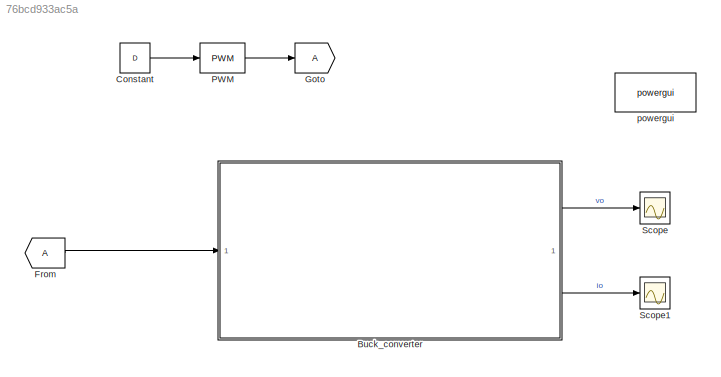
MODEL slx_76bcd933ac5a
KIND model
CONFIG AbsTol = auto
CONFIG EnableMultiTasking = off
CONFIG FixedStep = auto
CONFIG MaxStep = auto
CONFIG MinStep = auto
CONFIG RelTol = 1e-3
CONFIG SampleTimeConstraint = Unconstrained
CONFIG SolverName = VariableStepAuto
CONFIG StartTime = 0.0
CONFIG StopTime = Tend
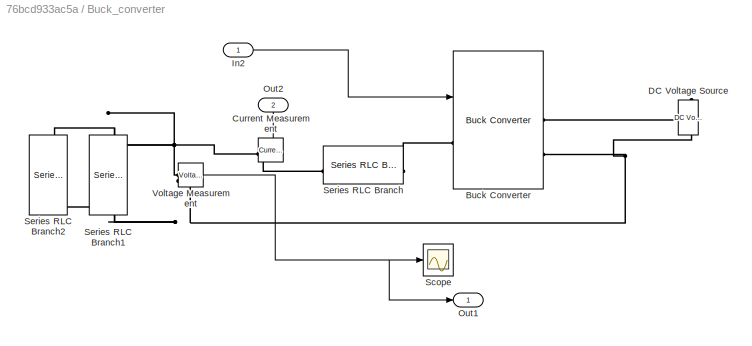
BLOCK [SubSystem] Buck_converter
BLOCK [Reference] Buck_converter/Buck Converter  REF=spsBuckConverterLib/Buck Converter
  LibrarySourceBlock = sps_lib/Power Electronics/Buck Converter
  SourceBlock = spsBuckConverterLib/Buck Converter
  SourceType = Buck Converter
BLOCK [Reference] Buck_converter/Current Measurement  REF=spsCurrentMeasurementLib/Current Measurement
  LibrarySourceBlock = sps_lib/Sensors and Measurements/Current Measurement
  NameLocation = top
  SourceBlock = spsCurrentMeasurementLib/Current Measurement
  SourceType = Current Measurement
  UserDataPersistent = on
BLOCK [Reference] Buck_converter/DC Voltage Source  REF=spsDCVoltageSourceLib/DC Voltage Source
  LibrarySourceBlock = sps_lib/Sources/DC Voltage Source
  SourceBlock = spsDCVoltageSourceLib/DC Voltage Source
  SourceType = DC Voltage Source
BLOCK [Inport] Buck_converter/In2
BLOCK [Outport] Buck_converter/Out1
BLOCK [Outport] Buck_converter/Out2
  Port = 2
BLOCK [Scope] Buck_converter/Scope
  Floating = off
  NumInputPorts = 1
  ScopeSpecificationString = Simulink.scopes.TimeScopeBlockCfg('CurrentConfiguration', extmgr.ConfigurationSet(extmgr.Configuration('Core','General UI',true),extmgr.Configuration('Core','Source UI',true),extmgr.Configuration('Sources','WiredSimulink',true),extmgr.Configuration('Visuals','Time Domain',true,'SerializedDisplays',{struct('MinYLimReal','-6.3939','MaxYLimReal','57.54614','YLabelReal','','MinYLimMag','0.00000','MaxY...<+1385ch>
BLOCK [Reference] Buck_converter/Series RLC Branch  REF=spsSeriesRLCBranchLib/Series RLC Branch
  LibrarySourceBlock = sps_lib/Passives/Series RLC Branch
  NameLocation = top
  SourceBlock = spsSeriesRLCBranchLib/Series RLC Branch
  SourceType = Series RLC Branch
BLOCK [Reference] Buck_converter/Series RLC Branch1  REF=spsSeriesRLCBranchLib/Series RLC Branch
  LibrarySourceBlock = sps_lib/Passives/Series RLC Branch
  NameLocation = left
  SourceBlock = spsSeriesRLCBranchLib/Series RLC Branch
  SourceType = Series RLC Branch
BLOCK [Reference] Buck_converter/Series RLC Branch2  REF=spsSeriesRLCBranchLib/Series RLC Branch
  LibrarySourceBlock = sps_lib/Passives/Series RLC Branch
  NameLocation = left
  SourceBlock = spsSeriesRLCBranchLib/Series RLC Branch
  SourceType = Series RLC Branch
BLOCK [Reference] Buck_converter/Voltage Measurement  REF=spsVoltageMeasurementLib/Voltage Measurement
  LibrarySourceBlock = sps_lib/Sensors and Measurements/Voltage Measurement
  SourceBlock = spsVoltageMeasurementLib/Voltage Measurement
  SourceType = Voltage Measurement
  UserDataPersistent = on
BLOCK [Constant] Constant
  Value = D
BLOCK [From] From
BLOCK [Goto] Goto
BLOCK [Reference] PWM  REF=simulink/Discontinuities/PWM
  DisableCoverage = on
  SourceBlock = simulink/Discontinuities/PWM
  SourceType = PWM
BLOCK [Scope] Scope
  Floating = off
  NumInputPorts = 1
  ScopeSpecificationString = Simulink.scopes.TimeScopeBlockCfg('CurrentConfiguration', extmgr.ConfigurationSet(extmgr.Configuration('Core','General UI',true),extmgr.Configuration('Core','Source UI',true),extmgr.Configuration('Sources','WiredSimulink',true,'DataLoggingVariableName','ScopeData1'),extmgr.Configuration('Visuals','Time Domain',true,'SerializedDisplays',{struct('MinYLimReal','-20.54254','MaxYLimReal','184.98282','Y...<+1390ch>
BLOCK [Scope] Scope1
  Floating = off
  NumInputPorts = 1
  ScopeSpecificationString = Simulink.scopes.TimeScopeBlockCfg('CurrentConfiguration', extmgr.ConfigurationSet(extmgr.Configuration('Core','General UI',true),extmgr.Configuration('Core','Source UI',true),extmgr.Configuration('Sources','WiredSimulink',true,'DataLoggingVariableName','ScopeData1'),extmgr.Configuration('Visuals','Time Domain',true,'SerializedDisplays',{struct('MinYLimReal','-0.62221','MaxYLimReal','5.59782','YLab...<+1405ch>
BLOCK [Reference] powergui  REF=spspowerguiLib/powergui
  LibrarySourceBlock = sps_lib/powergui
  Priority = 1
  SourceBlock = spspowerguiLib/powergui
  SourceType = PSB option menu block
LINE Buck_converter/Current Measurement:1 -> Buck_converter/Out2:1
LINE Buck_converter/In2:1 -> Buck_converter/Buck Converter:1
NET Buck_converter/Voltage Measurement:1 -> Buck_converter/Out1:1, Buck_converter/Scope:1
LINE Buck_converter:1 -> Scope:1
LINE Buck_converter:2 -> Scope1:1
LINE Constant:1 -> PWM:1
LINE From:1 -> Buck_converter:1
LINE PWM:1 -> Goto:1
PLINE Buck_converter/Buck Converter:LConn1 -- Buck_converter/Series RLC Branch:LConn1
PLINE Buck_converter/Buck Converter:RConn1 -- Buck_converter/DC Voltage Source:RConn1
PNET net1: Buck_converter/Buck Converter:RConn2 -- Buck_converter/DC Voltage Source:LConn1 -- Buck_converter/Series RLC Branch1:RConn1 -- Buck_converter/Series RLC Branch2:RConn1 -- Buck_converter/Voltage Measurement:LConn2
PLINE Buck_converter/Current Measurement:LConn1 -- Buck_converter/Series RLC Branch:RConn1
PNET net2: Buck_converter/Current Measurement:RConn1 -- Buck_converter/Series RLC Branch1:LConn1 -- Buck_converter/Series RLC Branch2:LConn1 -- Buck_converter/Voltage Measurement:LConn1
note: NET lines group one-source signal fan-out (src -> all destinations, sorted); 1:1 wires keep LINE; PNET lines group multi-terminal physical nets as a canonical sorted terminal list (undirected conserving connections); 2-terminal nets keep the pairwise PLINE form
